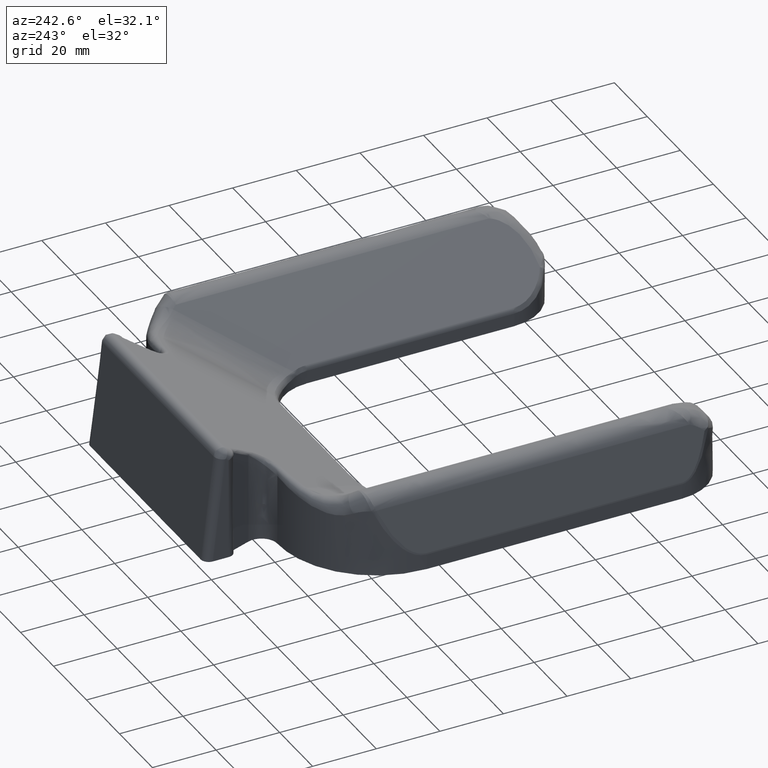
[diagram: clean part render]
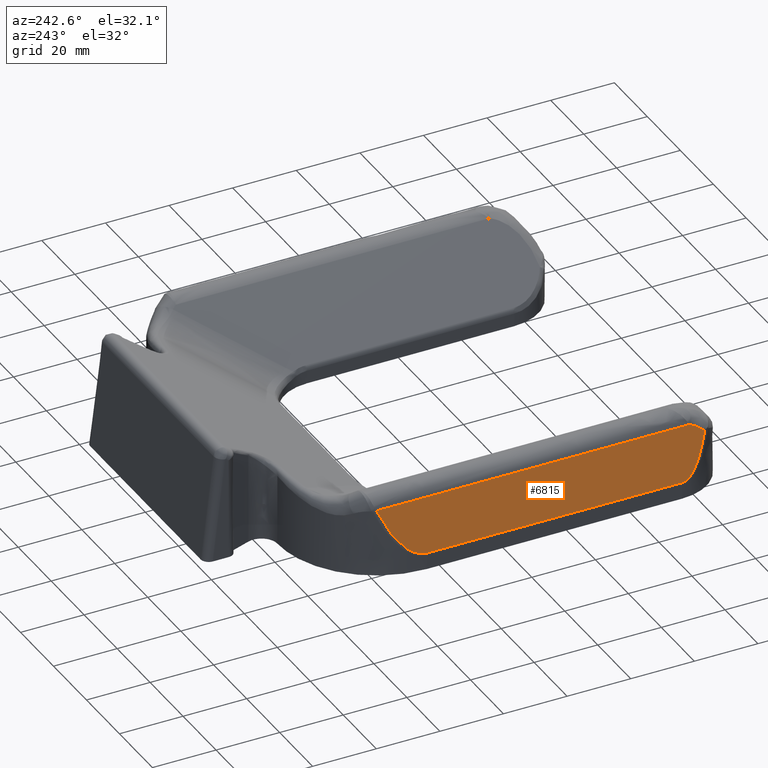
[diagram: same view with one face highlighted and labeled with its STEP entity id]
A machine part, auxiliary view. The second image highlights one B-rep face of the part: STEP entity #6815.
In plain terms, the highlighted face is a freeform B-spline surface patch.
Its self-contained STEP definition (entity closure, byte-faithful):
#5483=CARTESIAN_POINT('',(-63.961238296905123,-142.644891045554000,18.218766627858852));
#5484=VERTEX_POINT('',#5483);
#5561=CARTESIAN_POINT('',(-63.294251001037907,-138.245107017968990,21.120194995485502));
#5562=VERTEX_POINT('',#5561);
#5576=CARTESIAN_POINT('',(-63.961238296905201,-142.644891045554000,18.218766627858699));
#5577=CARTESIAN_POINT('',(-63.513912201654755,-140.771542392395930,20.164657697120592));
#5578=CARTESIAN_POINT('',(-63.294251001037892,-138.245107017968990,21.120194995485399));
#5586=(BOUNDED_CURVE()B_SPLINE_CURVE(2,(#5576,#5577,#5578),.UNSPECIFIED.,.F.,.U.)CURVE()GEOMETRIC_REPRESENTATION_ITEM()QUASI_UNIFORM_CURVE()RATIONAL_B_SPLINE_CURVE((1.0,0.975590645471497,1.0))REPRESENTATION_ITEM(''));
#5587=EDGE_CURVE('',#5484,#5562,#5586,.T.);
#6763=CARTESIAN_POINT('',(-63.111688281836088,-34.594366290884771,21.914352029128011));
#6764=CARTESIAN_POINT('',(-67.131723253421967,-34.594366290884771,4.426997205909568));
#6765=CARTESIAN_POINT('',(-63.111688281836102,-147.785256215492410,21.914352029128011));
#6766=CARTESIAN_POINT('',(-67.131723253421981,-147.785256215492410,4.426997205909568));
#6767=B_SPLINE_SURFACE_WITH_KNOTS('',1,1,((#6763,#6765),(#6764,#6766)),.UNSPECIFIED.,.F.,.F.,.U.,(2,2),(2,2),(0.0,17.943474019428759),(0.0,113.190889924607600),.UNSPECIFIED.);
#6768=CARTESIAN_POINT('',(-63.294251001037907,-39.734728700557490,21.120194995485502));
#6769=VERTEX_POINT('',#6768);
#6770=CARTESIAN_POINT('',(-63.294251001037907,-138.245107017968990,21.120194995485502));
#6771=CARTESIAN_POINT('',(-63.294251001037907,-105.408314245498500,21.120194995485502));
#6772=CARTESIAN_POINT('',(-63.294251001037907,-72.571521473027985,21.120194995485502));
#6773=CARTESIAN_POINT('',(-63.294251001037907,-39.734728700557461,21.120194995485502));
#6774=B_SPLINE_CURVE_WITH_KNOTS('',3,(#6770,#6771,#6772,#6773),.UNSPECIFIED.,.F.,.U.,(4,4),(0.419812708653464,0.593398155982998),.UNSPECIFIED.);
#6775=EDGE_CURVE('',#5562,#6769,#6774,.T.);
#6776=ORIENTED_EDGE('',*,*,#6775,.T.);
#6777=CARTESIAN_POINT('',(-66.949160436187796,-53.828215999999991,5.221154665997550));
#6778=VERTEX_POINT('',#6777);
#6779=CARTESIAN_POINT('',(-63.294251001037942,-39.734728700557433,21.120194995485509));
#6780=CARTESIAN_POINT('',(-66.949160436187867,-46.307552634905058,5.221154665997569));
#6781=CARTESIAN_POINT('',(-66.949160436187867,-53.828215999999983,5.221154665997569));
#6789=(BOUNDED_CURVE()B_SPLINE_CURVE(2,(#6779,#6780,#6781),.UNSPECIFIED.,.F.,.U.)CURVE()GEOMETRIC_REPRESENTATION_ITEM()QUASI_UNIFORM_CURVE()RATIONAL_B_SPLINE_CURVE((1.0,0.967979503958433,1.0))REPRESENTATION_ITEM(''));
#6790=EDGE_CURVE('',#6769,#6778,#6789,.T.);
#6791=ORIENTED_EDGE('',*,*,#6790,.T.);
#6792=CARTESIAN_POINT('',(-66.949160436187810,-134.0,5.221154665997550));
#6793=VERTEX_POINT('',#6792);
#6794=CARTESIAN_POINT('',(-66.949160436187796,-53.828215999999991,5.221154665997550));
#6795=CARTESIAN_POINT('',(-66.949160436187810,-134.0,5.221154665997550));
#6796=QUASI_UNIFORM_CURVE('',1,(#6794,#6795),.UNSPECIFIED.,.F.,.U.);
#6797=EDGE_CURVE('',#6778,#6793,#6796,.T.);
#6798=ORIENTED_EDGE('',*,*,#6797,.T.);
#6799=CARTESIAN_POINT('',(-66.949160436187825,-134.0,5.221154665997610));
#6800=CARTESIAN_POINT('',(-66.949160436187825,-138.838801290788980,5.221154665997610));
#6801=CARTESIAN_POINT('',(-63.961238296905186,-142.644891045554000,18.218766627858852));
#6809=(BOUNDED_CURVE()B_SPLINE_CURVE(2,(#6799,#6800,#6801),.UNSPECIFIED.,.F.,.U.)CURVE()GEOMETRIC_REPRESENTATION_ITEM()QUASI_UNIFORM_CURVE()RATIONAL_B_SPLINE_CURVE((1.0,0.945139405075052,1.0))REPRESENTATION_ITEM(''));
#6810=EDGE_CURVE('',#6793,#5484,#6809,.T.);
#6811=ORIENTED_EDGE('',*,*,#6810,.T.);
#6812=ORIENTED_EDGE('',*,*,#5587,.T.);
#6813=EDGE_LOOP('',(#6776,#6791,#6798,#6811,#6812));
#6814=FACE_OUTER_BOUND('',#6813,.T.);
#6815=ADVANCED_FACE('',(#6814),#6767,.T.);